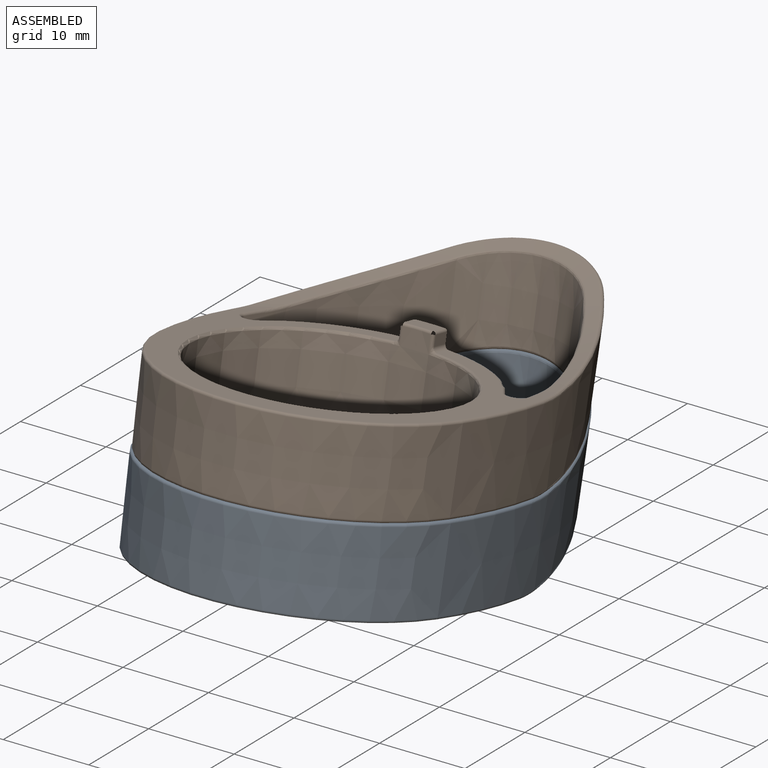
[diagram: assembled view]
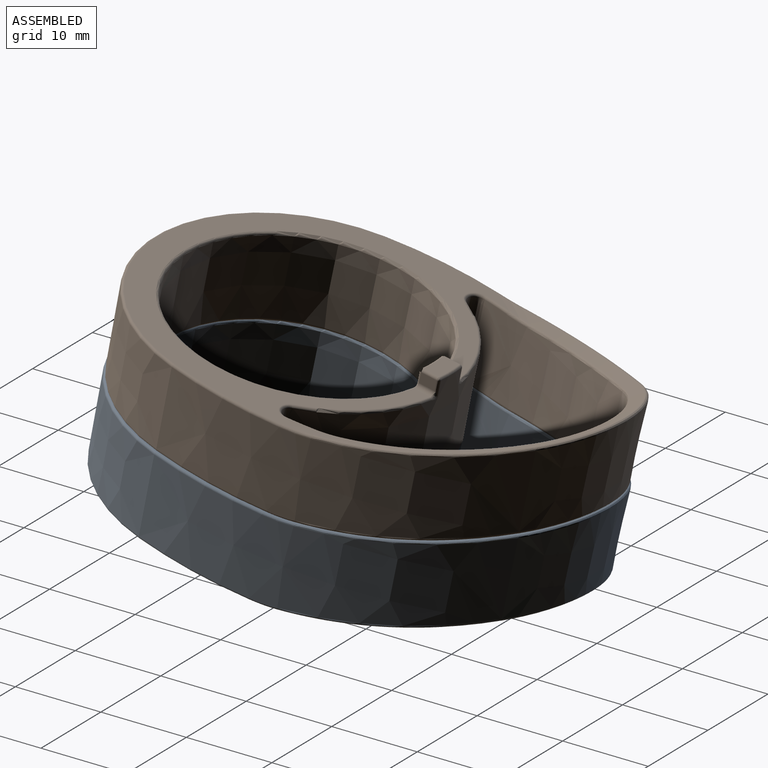
[diagram: assembled view, second angle]
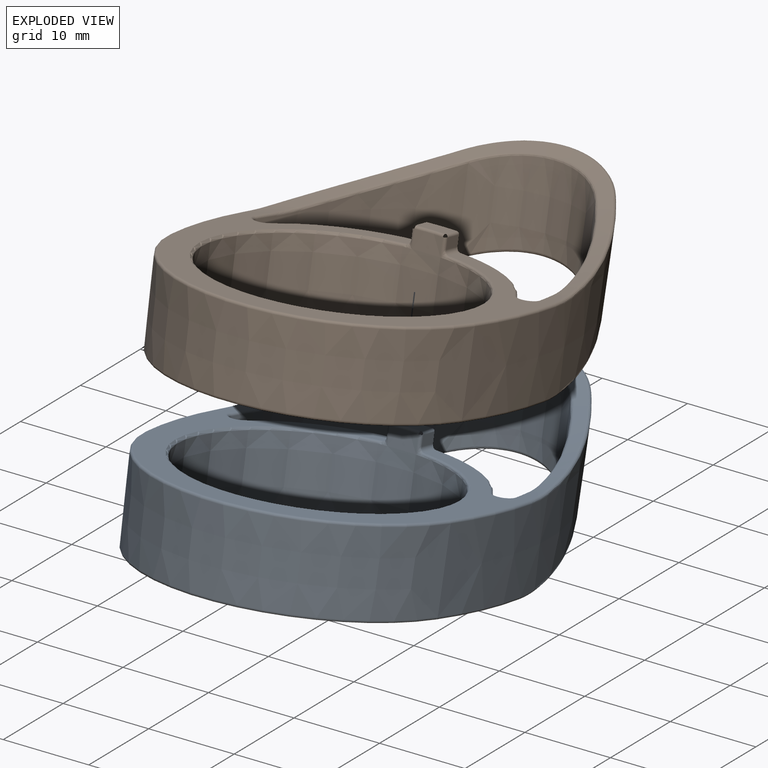
[diagram: exploded view]
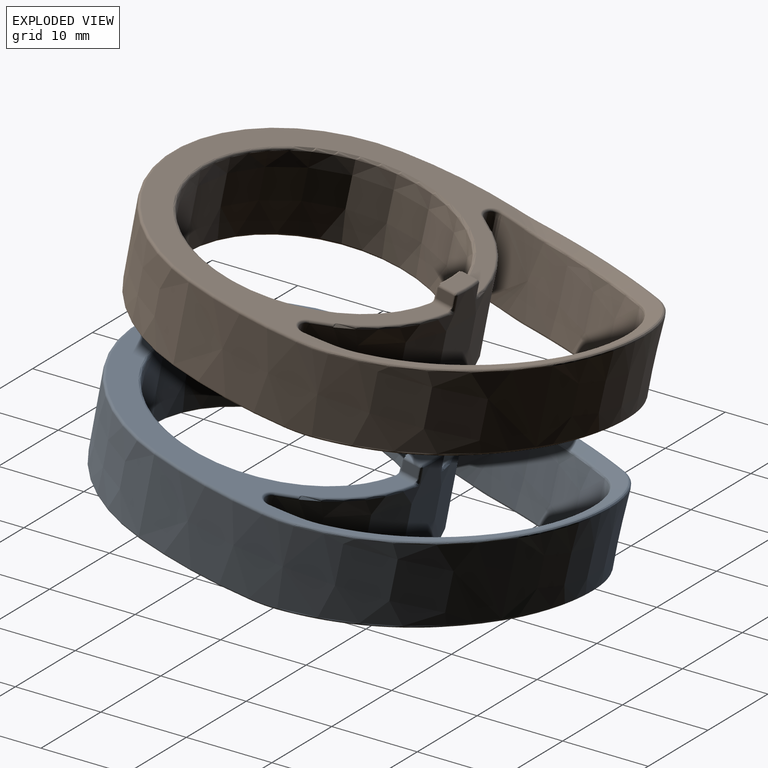
[diagram: exploded view, second angle]
ASSEMBLY  parts=2 mates=2
PART A: 105 faces, bbox 58.6x58.7x104.6 mm
  f0: cone r=17mm half-angle=0.5deg, axis (0,-0.21,-0.98), area 324.4mm2, adj f2,f6,f65,f66,f67,f68,f69,f70
  f1: cone r=14.35mm half-angle=0.5deg, axis (0,0.21,0.98), area 846.5mm2, adj f8,f10,f57,f58,f59,f60,f61,f62
  f2: torus R=16.6mm, axis (0,-0.21,-0.98), area 1.6mm2, adj f0,f4,f9,f92
  f3: cylinder r=0.3mm len=1.88mm, axis (0,0.98,-0.21), area 0.9mm2, adj f4,f5,f7,f9
  f4: sphere r=0.3mm, area 0.1mm2, adj f2,f3,f6
  f5: plane 2.07x1.57mm, normal (-1,0,0), area 2.2mm2, adj f3,f6,f8,f97,f98
  f6: bspline ~43.09x8.97mm, area 0.7mm2, adj f0,f4,f5,f99
  f7: sphere r=0.3mm, area 0.2mm2, adj f3,f8,f10
  f8: bspline ~38.14x8.7mm, area 0.7mm2, adj f1,f5,f7,f95,f96
  f9: plane 3.4x1.9mm, normal (0,0.21,0.98), area 6.3mm2, adj f2,f3,f10,f89
  f10: torus R=14.75mm, axis (0,-0.21,-0.98), area 1.6mm2, adj f1,f7,f9,f90
  f11: bspline ~18.88x5.58mm, area 6.3mm2, adj f13,f19,f23,f24
  f12: bspline ~16.8x5.75mm, area 10.9mm2, adj f13,f18,f33,f34
  f13: torus R=8.54mm, axis (0,0.21,0.98), area 58mm2, adj f11,f12,f14,f15,f18,f19,f23,f34
  f14: torus R=20.52mm, axis (0,0.21,0.98), area 3.6mm2, adj f13,f26,f35,f45
  f15: torus R=20.52mm, axis (0,0.21,0.98), area 3.6mm2, adj f13,f17,f20,f45
  f16: torus R=42.5mm, axis (0,0.21,0.98), area 1.5mm2, adj f17,f45,f46,f47
  f17: bspline ~4.92x1.34mm, area 1.3mm2, adj f15,f16,f18,f47
  f18: bspline ~23.74x11.69mm, area 10.8mm2, adj f12,f13,f17,f47
  f19: bspline ~24.97x12.03mm, area 8.2mm2, adj f11,f13,f20,f49
  f20: bspline ~6.5x1.49mm, area 1.3mm2, adj f15,f19,f21,f49
  f21: torus R=43.71mm, axis (0,0.21,0.98), area 6.3mm2, adj f20,f22,f45,f49
  f22: torus R=17.71mm, axis (0,0.21,0.98), area 23.1mm2, adj f21,f25,f45,f51
  f23: bspline ~26.44x11.78mm, area 8.2mm2, adj f11,f13,f26,f52
  f24: cone r=11.2mm half-angle=1deg, axis (0,0.21,0.98), area 190.6mm2, adj f11,f31,f49,f52
  f25: torus R=43.71mm, axis (0,0.21,0.98), area 6.3mm2, adj f22,f26,f45,f52
  f26: bspline ~3.95x0.86mm, area 1.3mm2, adj f14,f23,f25,f52
  f27: bspline ~25.07x12.38mm, area 12.6mm2, adj f31,f49,f50,f54
  f28: bspline ~21.79x10.78mm, area 7.1mm2, adj f29,f47,f48,f54
  f29: bspline ~16.11x4.81mm, area 5.6mm2, adj f28,f32,f33,f54
  f30: bspline ~26.5x11.9mm, area 12.6mm2, adj f31,f52,f53,f54
  f31: bspline ~19.34x5.97mm, area 13.1mm2, adj f24,f27,f30,f54
  f32: bspline ~23.52x11.72mm, area 7.1mm2, adj f29,f54,f55,f56
  f33: cone r=9.4mm half-angle=0.5deg, axis (0,0.21,0.98), area 158.3mm2, adj f12,f29,f47,f56
  f34: bspline ~21.96x10.99mm, area 10.8mm2, adj f12,f13,f35,f56
  f35: bspline ~4.02x1.08mm, area 1.3mm2, adj f14,f34,f36,f56
  f36: torus R=42.5mm, axis (0,0.21,0.98), area 1.5mm2, adj f35,f37,f45,f56
  f37: torus R=1.3mm, axis (0,0.21,0.98), area 1.4mm2, adj f36,f45,f65,f66
  f38: cylinder r=0.5mm len=2.16mm, axis (0,0.98,-0.21), area 1.6mm2, adj f39,f45,f61,f67
  f39: plane 2.25x1.54mm, normal (1,-0.01,-0.03), area 2.3mm2, adj f38,f40,f60,f68
  f40: cylinder r=0.6mm len=2.22mm, axis (0,0.98,-0.21), area 1.9mm2, adj f39,f41,f59,f69
  f41: plane 3.09x2.04mm, normal (0,-0.21,-0.98), area 6.2mm2, adj f40,f42,f58,f70
  f42: cylinder r=0.6mm len=2.22mm, axis (0,0.98,-0.21), area 1.9mm2, adj f41,f43,f57,f71
  f43: plane 2.25x1.54mm, normal (-1,-0.01,-0.03), area 2.3mm2, adj f42,f44,f64,f72
  f44: cylinder r=0.5mm len=2.16mm, axis (0,0.98,-0.21), area 1.6mm2, adj f43,f45,f63,f73
  f45: plane 36.33x33.45mm, normal (0,-0.21,-0.98), area 287.4mm2, adj f14,f15,f16,f21,f22,f25,f36,f37
  f46: torus R=1.3mm, axis (0,0.21,0.98), area 1.4mm2, adj f16,f45,f74,f75
  f47: cone r=42.2mm half-angle=0.5deg, axis (0,0.21,0.98), area 226.4mm2, adj f16,f17,f18,f28,f33,f48,f75,f78
  f48: bspline ~4.21x1.19mm, area 1.3mm2, adj f28,f47,f78,f79
  f49: cone r=44mm half-angle=1deg, axis (0,0.21,0.98), area 359.6mm2, adj f19,f20,f21,f24,f27,f50,f51,f80
  f50: bspline ~8.49x1.97mm, area 1.7mm2, adj f27,f49,f79,f80
  f51: cone r=18mm half-angle=1deg, axis (0,0.21,0.98), area 470.1mm2, adj f22,f49,f52,f81
  f52: cone r=44mm half-angle=1deg, axis (0,0.21,0.98), area 359.6mm2, adj f23,f24,f25,f26,f30,f51,f53,f82
  f53: bspline ~4.76x1.1mm, area 1.7mm2, adj f30,f52,f82,f83
  f54: torus R=8.54mm, axis (0,0.21,0.98), area 63mm2, adj f27,f28,f29,f30,f31,f32,f79,f83
  f55: bspline ~5.38x1.51mm, area 1.3mm2, adj f32,f56,f83,f84
  f56: cone r=42.2mm half-angle=0.5deg, axis (0,0.21,0.98), area 226.4mm2, adj f32,f33,f34,f35,f36,f55,f65,f84
  f57: bspline ~1.08x0.94mm, area 0.5mm2, adj f1,f42,f58,f64
  f58: torus R=14.67mm, axis (0,0.21,0.98), area 1.4mm2, adj f1,f41,f57,f59
  f59: bspline ~0.96x0.94mm, area 0.5mm2, adj f1,f40,f58,f60
  f60: bspline ~1.2x0.54mm, area 0.5mm2, adj f1,f39,f59,f61
  f61: bspline ~0.61x0.55mm, area 0.2mm2, adj f1,f38,f60,f62
  f62: torus R=14.65mm, axis (0,0.21,0.98), area 40.5mm2, adj f1,f45,f61,f63
  f63: bspline ~0.62x0.55mm, area 0.3mm2, adj f1,f44,f62,f64
  f64: bspline ~1.2x0.54mm, area 0.5mm2, adj f1,f43,f57,f63
  f65: cone r=1mm half-angle=0.5deg, axis (0,0.21,0.98), area 26.6mm2, adj f0,f37,f56,f86
  f66: torus R=16.7mm, axis (0,0.21,0.98), area 6.9mm2, adj f0,f37,f45,f67
  f67: bspline ~0.67x0.56mm, area 0.3mm2, adj f0,f38,f66,f68
  f68: bspline ~104.59x22.1mm, area 0.6mm2, adj f0,f39,f67,f69
  f69: bspline ~1.12x0.9mm, area 0.5mm2, adj f0,f40,f68,f70
  f70: torus R=16.68mm, axis (0,0.21,0.98), area 1.5mm2, adj f0,f41,f69,f71
  f71: bspline ~1.03x1mm, area 0.6mm2, adj f0,f42,f70,f72
  f72: bspline ~104.59x22.1mm, area 0.6mm2, adj f0,f43,f71,f73
  f73: bspline ~0.66x0.57mm, area 0.3mm2, adj f0,f44,f72,f74
  f74: torus R=16.7mm, axis (0,0.21,0.98), area 6.9mm2, adj f0,f45,f46,f73
  f75: cone r=1mm half-angle=0.5deg, axis (0,0.21,0.98), area 26.6mm2, adj f0,f46,f47,f77
  f76: torus R=16.62mm, axis (0,0.21,0.98), area 7.1mm2, adj f0,f77,f85,f100,f101
  f77: torus R=1.38mm, axis (0,0.21,0.98), area 1.5mm2, adj f75,f76,f78,f85
  f78: torus R=42.58mm, axis (0,0.21,0.98), area 1.4mm2, adj f47,f48,f77,f85
  f79: torus R=20.52mm, axis (0,0.21,0.98), area 3.9mm2, adj f48,f50,f54,f85
  f80: torus R=43.87mm, axis (0,0.21,0.98), area 6.3mm2, adj f49,f50,f81,f85
  f81: torus R=17.87mm, axis (0,0.21,0.98), area 23.8mm2, adj f51,f80,f82,f85
  f82: torus R=43.87mm, axis (0,0.21,0.98), area 6.3mm2, adj f52,f53,f81,f85
  f83: torus R=20.52mm, axis (0,0.21,0.98), area 3.9mm2, adj f53,f54,f55,f85
  f84: torus R=42.58mm, axis (0,0.21,0.98), area 1.4mm2, adj f55,f56,f85,f86
  f85: plane 36.66x33.56mm, normal (0,0.21,0.98), area 289.9mm2, adj f76,f77,f78,f79,f80,f81,f82,f83
  f86: torus R=1.38mm, axis (0,0.21,0.98), area 1.5mm2, adj f65,f84,f85,f87
  f87: torus R=16.62mm, axis (0,0.21,0.98), area 7.1mm2, adj f0,f85,f86,f98,f99
  f88: torus R=14.73mm, axis (0,0.21,0.98), area 40.8mm2, adj f1,f85,f95,f104
  f89: cylinder r=0.3mm len=1.88mm, axis (0,-0.98,0.21), area 0.9mm2, adj f9,f90,f91,f92
  f90: sphere r=0.3mm, area 0.1mm2, adj f10,f89,f94
  f91: plane 2.07x1.57mm, normal (1,0,0), area 2.2mm2, adj f89,f93,f94,f101,f102
  f92: sphere r=0.3mm, area 0.1mm2, adj f2,f89,f93
  f93: bspline ~43.09x8.97mm, area 0.7mm2, adj f0,f91,f92,f100
  f94: bspline ~38.14x8.7mm, area 0.7mm2, adj f1,f90,f91,f103,f104
  f95: bspline ~0.83x0.73mm, area 0.2mm2, adj f8,f88,f96
  f96: bspline ~0.54x0.51mm, area 0.1mm2, adj f8,f85,f95,f97
  f97: cylinder r=0.5mm len=1.85mm, axis (0,-0.98,0.21), area 1.4mm2, adj f5,f85,f96,f98
  f98: bspline ~0.53x0.51mm, area 0mm2, adj f5,f87,f97,f99
  f99: bspline ~0.85x0.76mm, area 0.2mm2, adj f6,f87,f98
  f100: bspline ~0.85x0.76mm, area 0.2mm2, adj f76,f93,f101
  f101: bspline ~0.53x0.5mm, area 0mm2, adj f76,f91,f100,f102
  f102: cylinder r=0.5mm len=1.85mm, axis (0,0.98,-0.21), area 1.4mm2, adj f85,f91,f101,f103
  f103: bspline ~0.52x0.51mm, area 0.1mm2, adj f85,f94,f102,f104
  f104: bspline ~0.83x0.73mm, area 0.2mm2, adj f88,f94,f103
PART B: same geometry as A
PLACE A rot(axis=(0,0.21,0.98),0.1deg) t=(27.39,-60.63,46.59)mm
PLACE B t=(27.28,-58.56,56.37)mm fixed
MATE cylindrical A.f54 <-> B.f54  axis (0,0.21,0.98) through (27.28,41.38,0)mm
MATE planar A.f85 <-> B.f45  axis (0,0.21,0.98) through (27.28,40.05,4.37)mm
